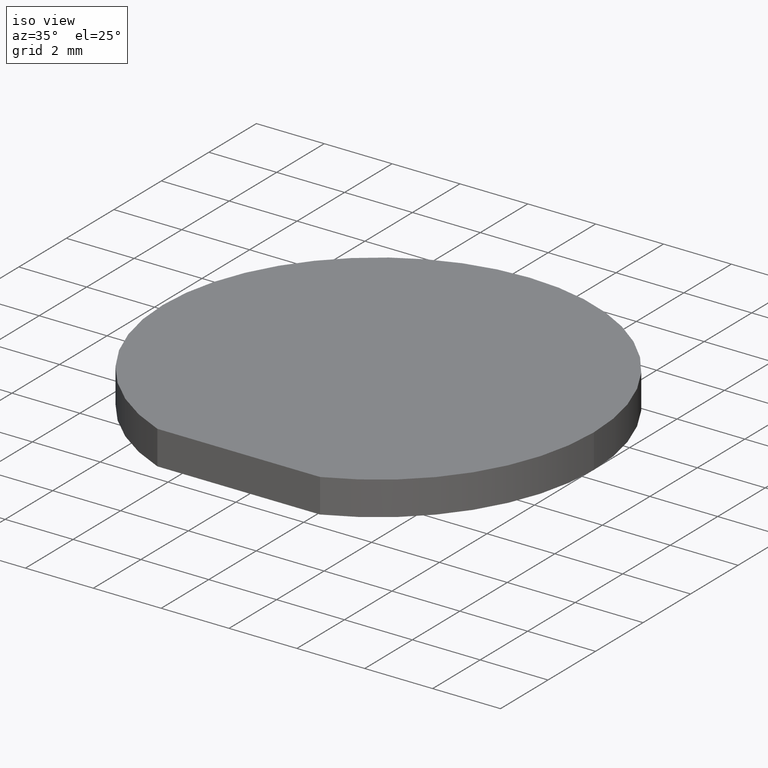
[diagram: clean part render]
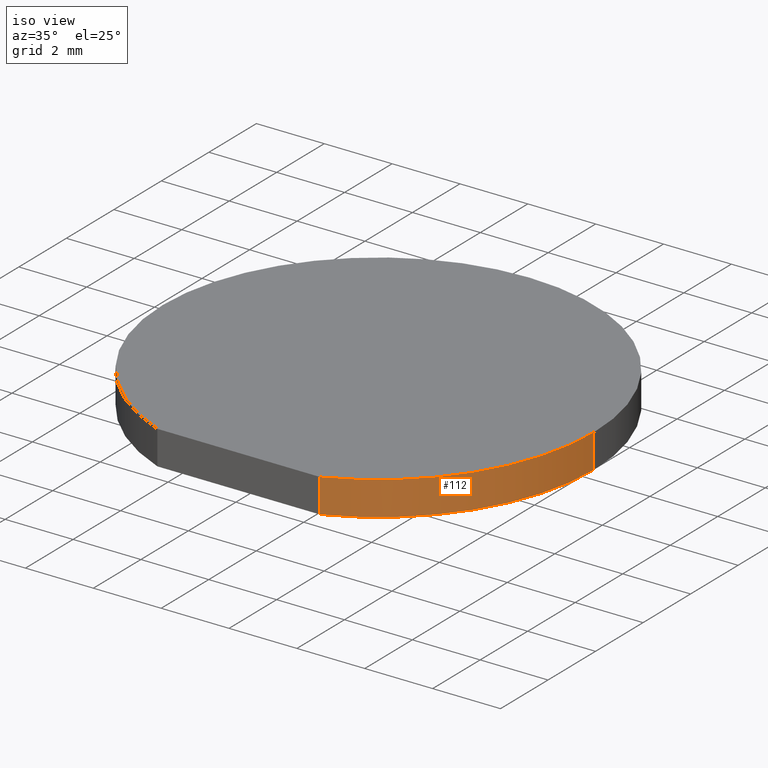
[diagram: same view with one face highlighted and labeled with its STEP entity id]
A machine part, iso view. The second image highlights one B-rep face of the part: STEP entity #112.
In plain terms, the highlighted cylindrical surface (partial cylindrical patch) has radius 6.35 mm, axis along (-0, -0, -1).
Its self-contained STEP definition (entity closure, byte-faithful):
#2 = LINE ( 'NONE', #179, #77 ) ;
#5 = EDGE_LOOP ( 'NONE', ( #202, #87, #79, #66 ) ) ;
#9 = EDGE_CURVE ( 'NONE', #135, #128, #194, .T. ) ;
#11 = DIRECTION ( 'NONE',  ( -0.0000000000000000000, -0.0000000000000000000, -1.000000000000000000 ) ) ;
#13 = DIRECTION ( 'NONE',  ( -1.000000000000000000, 0.0000000000000000000, 0.0000000000000000000 ) ) ;
#19 = EDGE_CURVE ( 'NONE', #150, #135, #167, .T. ) ;
#20 = DIRECTION ( 'NONE',  ( -0.0000000000000000000, -0.0000000000000000000, -1.000000000000000000 ) ) ;
#29 = FACE_OUTER_BOUND ( 'NONE', #5, .T. ) ;
#37 = CIRCLE ( 'NONE', #199, 6.349999999999999645 ) ;
#43 = DIRECTION ( 'NONE',  ( 0.0000000000000000000, 0.0000000000000000000, 1.000000000000000000 ) ) ;
#45 = VECTOR ( 'NONE', #11, 1000.000000000000000 ) ;
#48 = DIRECTION ( 'NONE',  ( -0.0000000000000000000, -0.0000000000000000000, -1.000000000000000000 ) ) ;
#60 = CARTESIAN_POINT ( 'NONE',  ( 2.397519551536546167, -5.879999999999999893, 1.000000000000000000 ) ) ;
#66 = ORIENTED_EDGE ( 'NONE', *, *, #110, .T. ) ;
#77 = VECTOR ( 'NONE', #20, 1000.000000000000000 ) ;
#79 = ORIENTED_EDGE ( 'NONE', *, *, #162, .T. ) ;
#87 = ORIENTED_EDGE ( 'NONE', *, *, #19, .F. ) ;
#102 = CARTESIAN_POINT ( 'NONE',  ( 0.0000000000000000000, 0.0000000000000000000, 1.000000000000000000 ) ) ;
#103 = DIRECTION ( 'NONE',  ( 1.000000000000000000, 0.0000000000000000000, 0.0000000000000000000 ) ) ;
#110 = EDGE_CURVE ( 'NONE', #115, #128, #37, .T. ) ;
#112 = ADVANCED_FACE ( 'NONE', ( #29 ), #155, .T. ) ;
#115 = VERTEX_POINT ( 'NONE', #174 ) ;
#117 = DIRECTION ( 'NONE',  ( 0.0000000000000000000, 0.0000000000000000000, 1.000000000000000000 ) ) ;
#128 = VERTEX_POINT ( 'NONE', #205 ) ;
#134 = CARTESIAN_POINT ( 'NONE',  ( 0.0000000000000000000, 0.0000000000000000000, 1.000000000000000000 ) ) ;
#135 = VERTEX_POINT ( 'NONE', #207 ) ;
#137 = DIRECTION ( 'NONE',  ( 1.000000000000000000, 0.0000000000000000000, 0.0000000000000000000 ) ) ;
#139 = CARTESIAN_POINT ( 'NONE',  ( 6.349999999999999645, 7.776507174585692163E-16, 1.000000000000000000 ) ) ;
#150 = VERTEX_POINT ( 'NONE', #60 ) ;
#155 = CYLINDRICAL_SURFACE ( 'NONE', #158, 6.349999999999999645 ) ;
#158 = AXIS2_PLACEMENT_3D ( 'NONE', #134, #48, #13 ) ;
#162 = EDGE_CURVE ( 'NONE', #150, #115, #2, .T. ) ;
#167 = CIRCLE ( 'NONE', #201, 6.349999999999999645 ) ;
#174 = CARTESIAN_POINT ( 'NONE',  ( 2.397519551536546167, -5.879999999999999893, 0.0000000000000000000 ) ) ;
#179 = CARTESIAN_POINT ( 'NONE',  ( 2.397519551536545723, -5.879999999999999893, 1.000000000000000000 ) ) ;
#194 = LINE ( 'NONE', #139, #45 ) ;
#199 = AXIS2_PLACEMENT_3D ( 'NONE', #203, #117, #103 ) ;
#201 = AXIS2_PLACEMENT_3D ( 'NONE', #102, #43, #137 ) ;
#202 = ORIENTED_EDGE ( 'NONE', *, *, #9, .F. ) ;
#203 = CARTESIAN_POINT ( 'NONE',  ( 0.0000000000000000000, 0.0000000000000000000, 0.0000000000000000000 ) ) ;
#205 = CARTESIAN_POINT ( 'NONE',  ( 6.349999999999999645, 7.776507174585692163E-16, 0.0000000000000000000 ) ) ;
#207 = CARTESIAN_POINT ( 'NONE',  ( 6.349999999999999645, 7.776507174585692163E-16, 1.000000000000000000 ) ) ;